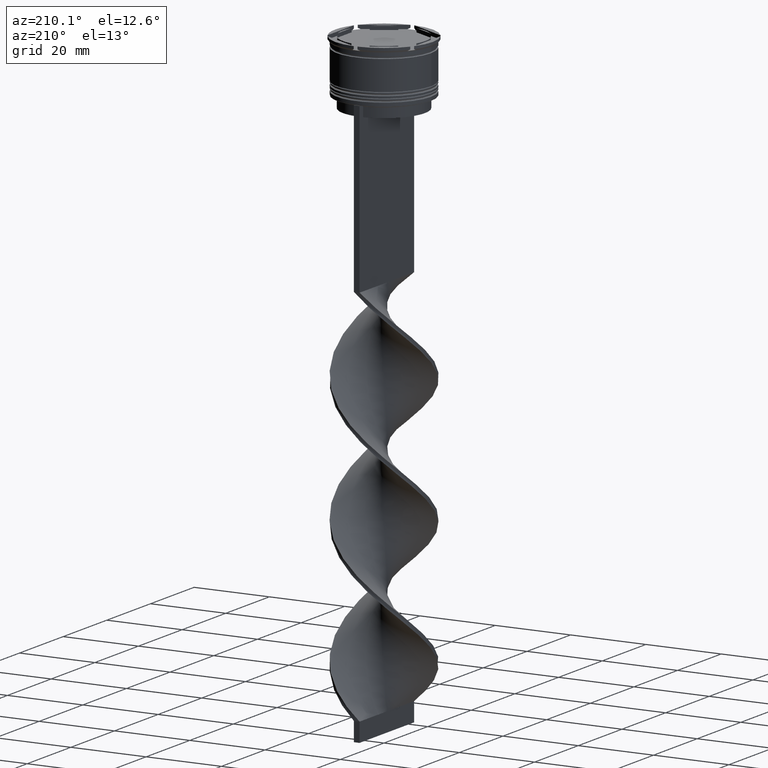
[diagram: clean part render]
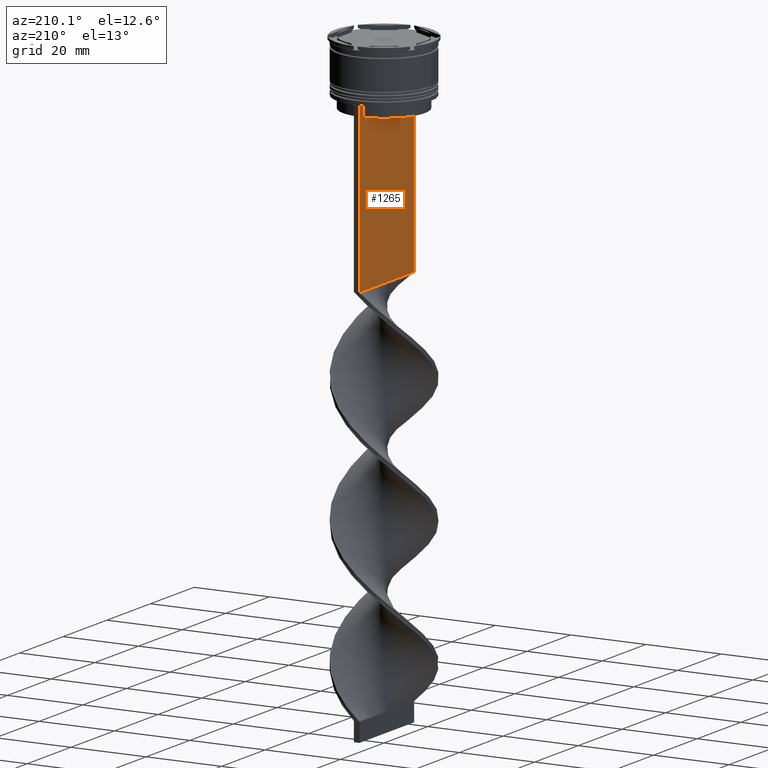
[diagram: same view with one face highlighted and labeled with its STEP entity id]
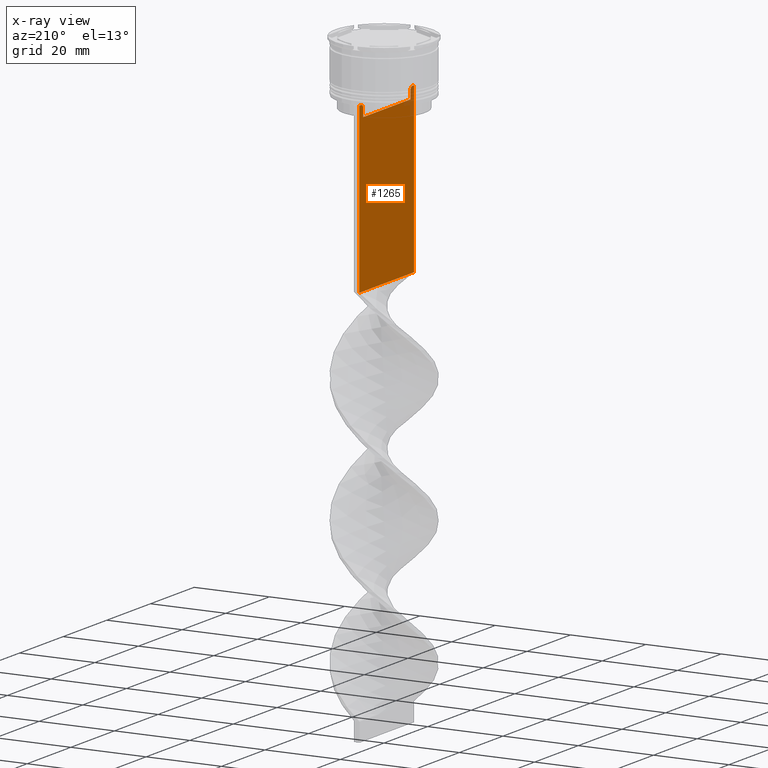
[diagram: x-ray of the same camera — body ghosted, the highlighted face saturated]
A machine part, auxiliary view. The second image highlights one B-rep face of the part: STEP entity #1265.
The next image is the same camera in x-ray: the body ghosted, the highlighted face saturated — about 2% of this face is hidden behind the body in this view.
In plain terms, the highlighted planar face has unit normal (-1, 0, 0).
Its self-contained STEP definition (entity closure, byte-faithful):
#15 = LINE ( 'NONE', #1223, #2618 ) ;
#16 = AXIS2_PLACEMENT_3D ( 'NONE', #514, #1495, #3423 ) ;
#82 = DIRECTION ( 'NONE',  ( 0.000000000000000000, -1.000000000000000000, 0.000000000000000000 ) ) ;
#110 = CARTESIAN_POINT ( 'NONE',  ( -0.7499999999999997780, -11.04122051801870619, -14.33334204001847745 ) ) ;
#199 = CARTESIAN_POINT ( 'NONE',  ( -0.7499999999999997780, -12.37729776647553059, -14.00000000000000178 ) ) ;
#200 = DIRECTION ( 'NONE',  ( 0.000000000000000000, 0.000000000000000000, -1.000000000000000000 ) ) ;
#226 = EDGE_CURVE ( 'NONE', #511, #3834, #2770, .T. ) ;
#263 = PLANE ( 'NONE',  #16 ) ;
#291 = DIRECTION ( 'NONE',  ( 0.000000000000000000, -1.000000000000000000, 0.000000000000000000 ) ) ;
#315 = CARTESIAN_POINT ( 'NONE',  ( -0.7499999999999997780, -11.20826532207830439, -14.16667499063191471 ) ) ;
#357 = EDGE_CURVE ( 'NONE', #1228, #3834, #15, .T. ) ;
#448 = LINE ( 'NONE', #3339, #3097 ) ;
#511 = VERTEX_POINT ( 'NONE', #1826 ) ;
#514 = CARTESIAN_POINT ( 'NONE',  ( -0.7499999999999997780, -12.50000000000000000, 11.04495957273638673 ) ) ;
#517 = ORIENTED_EDGE ( 'NONE', *, *, #226, .T. ) ;
#533 = CARTESIAN_POINT ( 'NONE',  ( -0.7499999999999997780, 10.87416663473574374, 0.000000000000000000 ) ) ;
#590 = CARTESIAN_POINT ( 'NONE',  ( -0.7499999999999997780, 11.20826531587977648, -14.16667499681701514 ) ) ;
#600 = CARTESIAN_POINT ( 'NONE',  ( -0.7499999999999997780, 12.50000000000000000, -58.00000000000000000 ) ) ;
#639 = ORIENTED_EDGE ( 'NONE', *, *, #3558, .F. ) ;
#664 = CARTESIAN_POINT ( 'NONE',  ( -0.7499999999999997780, -12.50000000000000000, -14.00000000000000178 ) ) ;
#732 = ORIENTED_EDGE ( 'NONE', *, *, #930, .F. ) ;
#864 = CARTESIAN_POINT ( 'NONE',  ( -0.7499999999999997780, -10.87416663473574374, 0.000000000000000000 ) ) ;
#868 = DIRECTION ( 'NONE',  ( 0.000000000000000000, -1.000000000000000000, 0.000000000000000000 ) ) ;
#930 = EDGE_CURVE ( 'NONE', #3920, #3577, #3610, .T. ) ;
#1157 = CARTESIAN_POINT ( 'NONE',  ( -0.7499999999999997780, 11.37530219378809093, -14.00000000000000178 ) ) ;
#1223 = CARTESIAN_POINT ( 'NONE',  ( -0.7499999999999997780, -12.50000000000000000, -58.00000000000000000 ) ) ;
#1228 = VERTEX_POINT ( 'NONE', #1436 ) ;
#1229 = DIRECTION ( 'NONE',  ( 0.000000000000000000, -1.000000000000000000, 0.000000000000000000 ) ) ;
#1236 = CARTESIAN_POINT ( 'NONE',  ( -0.7499999999999997780, 11.04122051153452055, -14.33334204648729582 ) ) ;
#1265 = ADVANCED_FACE ( 'NONE', ( #2190 ), #263, .T. ) ;
#1313 = LINE ( 'NONE', #2532, #1704 ) ;
#1398 = EDGE_CURVE ( 'NONE', #2063, #1228, #1515, .T. ) ;
#1436 = CARTESIAN_POINT ( 'NONE',  ( -0.7499999999999997780, -12.50000000000000000, -58.00000000000000000 ) ) ;
#1468 = DIRECTION ( 'NONE',  ( 0.000000000000000000, -1.000000000000000000, 0.000000000000000000 ) ) ;
#1495 = DIRECTION ( 'NONE',  ( -1.000000000000000000, 0.000000000000000000, 0.000000000000000000 ) ) ;
#1515 = LINE ( 'NONE', #1794, #1543 ) ;
#1543 = VECTOR ( 'NONE', #4123, 1000.000000000000000 ) ;
#1547 = EDGE_CURVE ( 'NONE', #3716, #2949, #3261, .T. ) ;
#1600 = ORIENTED_EDGE ( 'NONE', *, *, #357, .F. ) ;
#1704 = VECTOR ( 'NONE', #1229, 1000.000000000000000 ) ;
#1751 = VECTOR ( 'NONE', #200, 1000.000000000000000 ) ;
#1757 = CARTESIAN_POINT ( 'NONE',  ( -0.7499999999999997780, 12.50000000000000000, 11.04495957273638673 ) ) ;
#1794 = CARTESIAN_POINT ( 'NONE',  ( -0.7499999999999997780, -12.50000000000000000, 11.04495957273638673 ) ) ;
#1826 = CARTESIAN_POINT ( 'NONE',  ( -0.7499999999999997780, 12.50000000000000000, -14.00000000000000178 ) ) ;
#1886 = B_SPLINE_CURVE_WITH_KNOTS ( 'NONE', 3,
 ( #4133, #590, #1236, #2562 ),
 .UNSPECIFIED., .F., .F.,
 ( 4, 4 ),
 ( 0.01936090553552769281, 0.02006881572333104116 ),
 .UNSPECIFIED. ) ;
#1908 = CARTESIAN_POINT ( 'NONE',  ( -0.7499999999999997780, -11.37530219378809093, -14.00000000000000178 ) ) ;
#1910 = VERTEX_POINT ( 'NONE', #3382 ) ;
#1953 = EDGE_LOOP ( 'NONE', ( #3993, #2669, #2468, #517, #1600, #3273, #3832, #3871, #732, #3659, #639, #3999 ) ) ;
#2032 = VERTEX_POINT ( 'NONE', #2580 ) ;
#2063 = VERTEX_POINT ( 'NONE', #3546 ) ;
#2127 = CARTESIAN_POINT ( 'NONE',  ( -0.7499999999999997780, 10.87416663473574019, -17.00000000000000000 ) ) ;
#2145 = CARTESIAN_POINT ( 'NONE',  ( -0.7499999999999997780, -12.50000000000000000, -14.00000000000000178 ) ) ;
#2152 = DIRECTION ( 'NONE',  ( 0.000000000000000000, 0.000000000000000000, -1.000000000000000000 ) ) ;
#2190 = FACE_OUTER_BOUND ( 'NONE', #1953, .T. ) ;
#2195 = LINE ( 'NONE', #3472, #2560 ) ;
#2196 = EDGE_CURVE ( 'NONE', #3073, #2063, #2195, .T. ) ;
#2303 = VECTOR ( 'NONE', #1468, 1000.000000000000000 ) ;
#2342 = CARTESIAN_POINT ( 'NONE',  ( -0.7499999999999997780, -10.87416663473574374, -14.50000000000000000 ) ) ;
#2363 = VECTOR ( 'NONE', #82, 1000.000000000000000 ) ;
#2468 = ORIENTED_EDGE ( 'NONE', *, *, #3007, .F. ) ;
#2532 = CARTESIAN_POINT ( 'NONE',  ( -0.7499999999999997780, -12.50000000000000000, -14.00000000000000178 ) ) ;
#2560 = VECTOR ( 'NONE', #291, 1000.000000000000000 ) ;
#2562 = CARTESIAN_POINT ( 'NONE',  ( -0.7499999999999997780, 10.87416663473574374, -14.50000000000000000 ) ) ;
#2580 = CARTESIAN_POINT ( 'NONE',  ( -0.7499999999999997780, 10.87416663473574374, -14.50000000000000000 ) ) ;
#2593 = CARTESIAN_POINT ( 'NONE',  ( -0.7499999999999997780, 12.37729776647553059, -14.00000000000000178 ) ) ;
#2618 = VECTOR ( 'NONE', #4077, 1000.000000000000000 ) ;
#2669 = ORIENTED_EDGE ( 'NONE', *, *, #1547, .F. ) ;
#2684 = VERTEX_POINT ( 'NONE', #2127 ) ;
#2770 = LINE ( 'NONE', #1757, #1751 ) ;
#2949 = VERTEX_POINT ( 'NONE', #1157 ) ;
#3007 = EDGE_CURVE ( 'NONE', #511, #3716, #3384, .T. ) ;
#3033 = VECTOR ( 'NONE', #3420, 1000.000000000000000 ) ;
#3073 = VERTEX_POINT ( 'NONE', #199 ) ;
#3097 = VECTOR ( 'NONE', #868, 1000.000000000000000 ) ;
#3112 = EDGE_CURVE ( 'NONE', #1910, #3920, #3742, .T. ) ;
#3250 = EDGE_CURVE ( 'NONE', #2949, #2032, #1886, .T. ) ;
#3261 = LINE ( 'NONE', #664, #2363 ) ;
#3273 = ORIENTED_EDGE ( 'NONE', *, *, #1398, .F. ) ;
#3339 = CARTESIAN_POINT ( 'NONE',  ( -0.7499999999999997780, 10.90000000000000213, -17.00000000000000000 ) ) ;
#3382 = CARTESIAN_POINT ( 'NONE',  ( -0.7499999999999997780, -10.87416663473574019, -17.00000000000000000 ) ) ;
#3384 = LINE ( 'NONE', #2145, #2303 ) ;
#3403 = LINE ( 'NONE', #533, #3848 ) ;
#3420 = DIRECTION ( 'NONE',  ( -0.000000000000000000, -0.000000000000000000, 1.000000000000000000 ) ) ;
#3423 = DIRECTION ( 'NONE',  ( 0.000000000000000000, 0.000000000000000000, 1.000000000000000000 ) ) ;
#3472 = CARTESIAN_POINT ( 'NONE',  ( -0.7499999999999997780, -12.50000000000000000, -14.00000000000000178 ) ) ;
#3546 = CARTESIAN_POINT ( 'NONE',  ( -0.7499999999999997780, -12.50000000000000000, -14.00000000000000178 ) ) ;
#3558 = EDGE_CURVE ( 'NONE', #2684, #1910, #448, .T. ) ;
#3577 = VERTEX_POINT ( 'NONE', #3949 ) ;
#3610 = B_SPLINE_CURVE_WITH_KNOTS ( 'NONE', 3,
 ( #2342, #110, #315, #1908 ),
 .UNSPECIFIED., .F., .F.,
 ( 4, 4 ),
 ( 0.05009718908159448147, 0.05081156920313960323 ),
 .UNSPECIFIED. ) ;
#3637 = EDGE_CURVE ( 'NONE', #2032, #2684, #3403, .T. ) ;
#3659 = ORIENTED_EDGE ( 'NONE', *, *, #3112, .F. ) ;
#3685 = EDGE_CURVE ( 'NONE', #3577, #3073, #1313, .T. ) ;
#3716 = VERTEX_POINT ( 'NONE', #2593 ) ;
#3742 = LINE ( 'NONE', #864, #3033 ) ;
#3832 = ORIENTED_EDGE ( 'NONE', *, *, #2196, .F. ) ;
#3834 = VERTEX_POINT ( 'NONE', #600 ) ;
#3848 = VECTOR ( 'NONE', #2152, 1000.000000000000000 ) ;
#3871 = ORIENTED_EDGE ( 'NONE', *, *, #3685, .F. ) ;
#3920 = VERTEX_POINT ( 'NONE', #3939 ) ;
#3939 = CARTESIAN_POINT ( 'NONE',  ( -0.7499999999999997780, -10.87416663473574374, -14.50000000000000000 ) ) ;
#3949 = CARTESIAN_POINT ( 'NONE',  ( -0.7499999999999997780, -11.37530219378809093, -14.00000000000000178 ) ) ;
#3993 = ORIENTED_EDGE ( 'NONE', *, *, #3250, .F. ) ;
#3999 = ORIENTED_EDGE ( 'NONE', *, *, #3637, .F. ) ;
#4077 = DIRECTION ( 'NONE',  ( 0.000000000000000000, 1.000000000000000000, 0.000000000000000000 ) ) ;
#4123 = DIRECTION ( 'NONE',  ( 0.000000000000000000, 0.000000000000000000, -1.000000000000000000 ) ) ;
#4133 = CARTESIAN_POINT ( 'NONE',  ( -0.7499999999999997780, 11.37530219378809093, -14.00000000000000178 ) ) ;